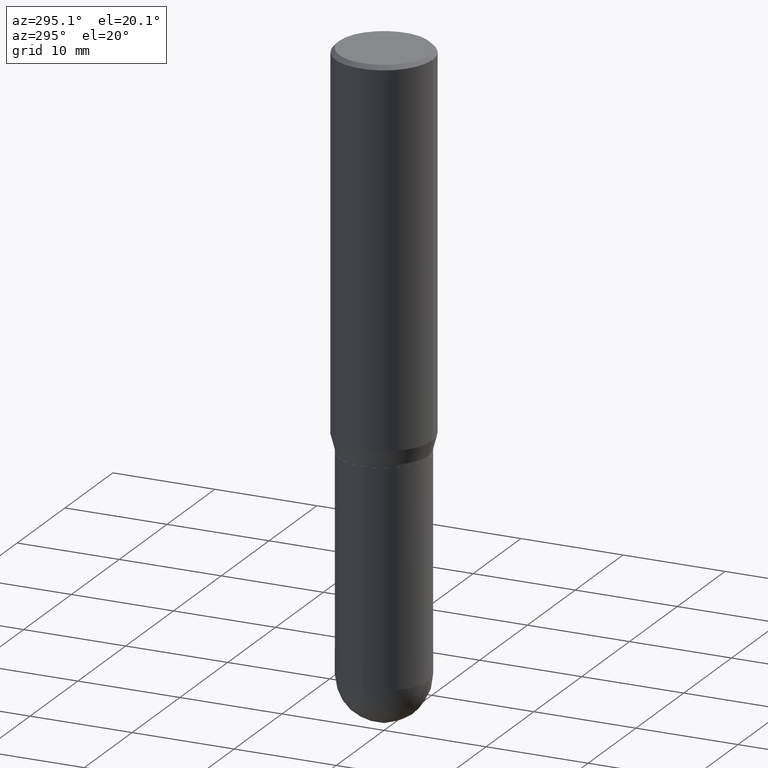
[diagram: clean part render]
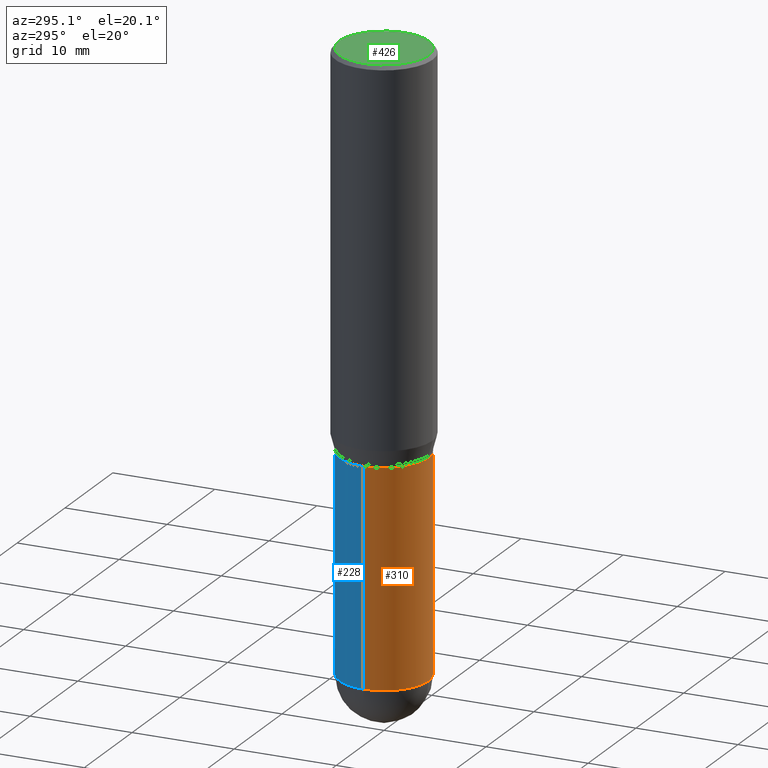
[diagram: same view with three faces highlighted in distinct colors, each labeled with its STEP entity id]
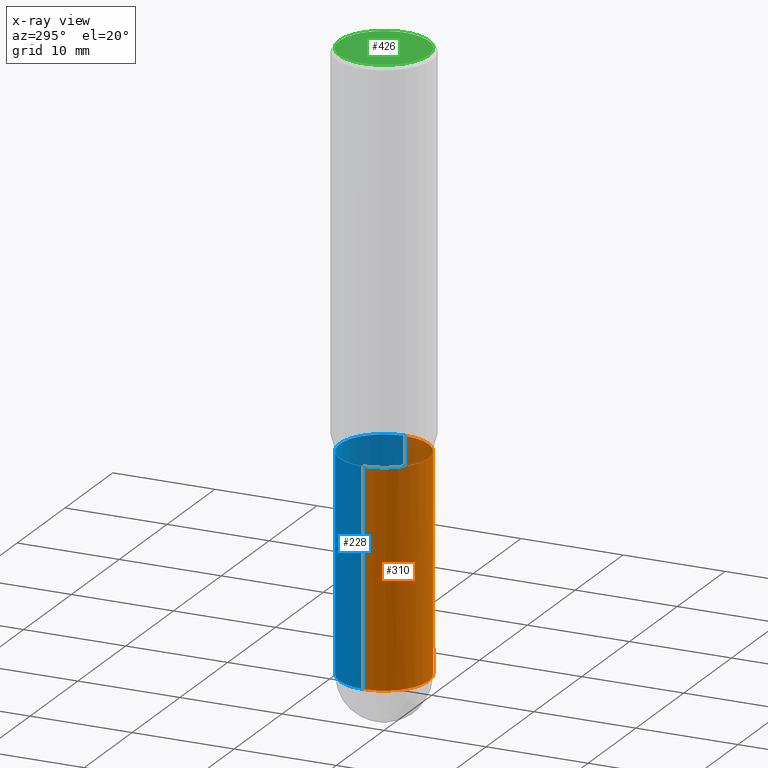
[diagram: x-ray of the same camera — body ghosted, the three highlighted faces saturated]
A machine part, auxiliary view with three faces highlighted in distinct colors.
The next image is the same camera in x-ray (body ghosted, the three faces saturated) — at least one of them is partly hidden behind the body in this view.
Their STEP definitions:

[orange] entity #310 — the highlighted cylindrical surface (partial cylindrical patch) has radius 4.3663 mm, axis along (-0, 0, 1).
#11 = VERTEX_POINT ( 'NONE', #105 ) ;
#17 = LINE ( 'NONE', #107, #503 ) ;
#74 = CIRCLE ( 'NONE', #203, 0.1719000000000000250 ) ;
#80 = EDGE_CURVE ( 'NONE', #11, #320, #17, .T. ) ;
#87 = AXIS2_PLACEMENT_3D ( 'NONE', #119, #254, #508 ) ;
#91 = CYLINDRICAL_SURFACE ( 'NONE', #87, 0.1719000000000000250 ) ;
#100 = DIRECTION ( 'NONE',  ( 1.000000000000000000, -6.982962677686268288E-15, 0.000000000000000000 ) ) ;
#102 = CARTESIAN_POINT ( 'NONE',  ( -0.1718999999999999695, -5.461446893841111458E-15, -1.500000000000000222 ) ) ;
#105 = CARTESIAN_POINT ( 'NONE',  ( 0.1719000000000000250, -7.883241140906993293E-15, -2.328100000000000058 ) ) ;
#107 = CARTESIAN_POINT ( 'NONE',  ( 0.1719000000000000250, -1.200371284294269241E-15, 8.382147877593214480E-30 ) ) ;
#119 = CARTESIAN_POINT ( 'NONE',  ( 0.000000000000000000, 0.000000000000000000, 0.000000000000000000 ) ) ;
#121 = CARTESIAN_POINT ( 'NONE',  ( 0.1718999999999999695, -6.437593292558987418E-15, -1.500000000000000222 ) ) ;
#166 = EDGE_CURVE ( 'NONE', #336, #11, #234, .T. ) ;
#183 = DIRECTION ( 'NONE',  ( -2.445468806185136877E-29, 3.491481338843145188E-15, 1.000000000000000000 ) ) ;
#185 = CARTESIAN_POINT ( 'NONE',  ( 5.693295927679617284E-29, -8.128517704960729139E-15, -2.328100000000000058 ) ) ;
#193 = DIRECTION ( 'NONE',  ( -2.445468806185136597E-29, 3.491481338843145583E-15, 1.000000000000000000 ) ) ;
#203 = AXIS2_PLACEMENT_3D ( 'NONE', #307, #447, #376 ) ;
#205 = EDGE_CURVE ( 'NONE', #483, #210, #486, .T. ) ;
#210 = VERTEX_POINT ( 'NONE', #102 ) ;
#215 = ORIENTED_EDGE ( 'NONE', *, *, #80, .T. ) ;
#234 = CIRCLE ( 'NONE', #299, 0.1719000000000000250 ) ;
#254 = DIRECTION ( 'NONE',  ( -2.445468806185136597E-29, 3.491481338843145583E-15, 1.000000000000000000 ) ) ;
#255 = DIRECTION ( 'NONE',  ( -2.445468806185136877E-29, 3.491481338843145188E-15, 1.000000000000000000 ) ) ;
#275 = CARTESIAN_POINT ( 'NONE',  ( -1.221422962771555008E-15, -0.1719000000000081296, -2.328099999999999614 ) ) ;
#299 = AXIS2_PLACEMENT_3D ( 'NONE', #185, #449, #482 ) ;
#307 = CARTESIAN_POINT ( 'NONE',  ( 5.693295927679617284E-29, -8.128517704960729139E-15, -2.328100000000000058 ) ) ;
#310 = ADVANCED_FACE ( 'NONE', ( #393 ), #91, .T. ) ;
#320 = VERTEX_POINT ( 'NONE', #121 ) ;
#330 = ORIENTED_EDGE ( 'NONE', *, *, #166, .T. ) ;
#334 = CARTESIAN_POINT ( 'NONE',  ( -0.1719000000000000250, -5.461446893841112247E-15, -2.328100000000000058 ) ) ;
#336 = VERTEX_POINT ( 'NONE', #275 ) ;
#345 = EDGE_CURVE ( 'NONE', #210, #320, #420, .T. ) ;
#365 = ORIENTED_EDGE ( 'NONE', *, *, #205, .F. ) ;
#376 = DIRECTION ( 'NONE',  ( 1.000000000000000000, -6.982962677686271444E-15, 0.000000000000000000 ) ) ;
#386 = EDGE_LOOP ( 'NONE', ( #365, #476, #330, #215, #397 ) ) ;
#393 = FACE_OUTER_BOUND ( 'NONE', #386, .T. ) ;
#397 = ORIENTED_EDGE ( 'NONE', *, *, #345, .F. ) ;
#419 = VECTOR ( 'NONE', #255, 39.37007874015748143 ) ;
#420 = CIRCLE ( 'NONE', #454, 0.1718999999999999695 ) ;
#424 = EDGE_CURVE ( 'NONE', #483, #336, #74, .T. ) ;
#447 = DIRECTION ( 'NONE',  ( -2.445468806185136597E-29, 3.491481338843145583E-15, 1.000000000000000000 ) ) ;
#449 = DIRECTION ( 'NONE',  ( -2.445468806185136597E-29, 3.491481338843145583E-15, 1.000000000000000000 ) ) ;
#453 = CARTESIAN_POINT ( 'NONE',  ( 3.668203209277704895E-29, -5.237222008264718177E-15, -1.500000000000000222 ) ) ;
#454 = AXIS2_PLACEMENT_3D ( 'NONE', #453, #193, #100 ) ;
#455 = CARTESIAN_POINT ( 'NONE',  ( -0.1719000000000000250, 1.221422962771612397E-15, -8.455649420148184581E-30 ) ) ;
#476 = ORIENTED_EDGE ( 'NONE', *, *, #424, .T. ) ;
#482 = DIRECTION ( 'NONE',  ( 1.000000000000000000, -6.982962677686271444E-15, 0.000000000000000000 ) ) ;
#483 = VERTEX_POINT ( 'NONE', #334 ) ;
#486 = LINE ( 'NONE', #455, #419 ) ;
#503 = VECTOR ( 'NONE', #183, 39.37007874015748143 ) ;
#508 = DIRECTION ( 'NONE',  ( 1.000000000000000000, -6.982962677686265922E-15, 4.876176775795935793E-29 ) ) ;

[blue] entity #228 — the highlighted cylindrical surface (partial cylindrical patch) has radius 4.3663 mm, axis along (-0, 0, 1).
#11 = VERTEX_POINT ( 'NONE', #105 ) ;
#13 = VERTEX_POINT ( 'NONE', #62 ) ;
#16 = CARTESIAN_POINT ( 'NONE',  ( 5.693295927679617284E-29, -8.128517704960729139E-15, -2.328100000000000058 ) ) ;
#17 = LINE ( 'NONE', #107, #503 ) ;
#23 = DIRECTION ( 'NONE',  ( -2.445468806185136597E-29, 3.491481338843145583E-15, 1.000000000000000000 ) ) ;
#53 = DIRECTION ( 'NONE',  ( 1.000000000000000000, -6.982962677686268288E-15, 0.000000000000000000 ) ) ;
#54 = ORIENTED_EDGE ( 'NONE', *, *, #98, .F. ) ;
#58 = CYLINDRICAL_SURFACE ( 'NONE', #123, 0.1719000000000000250 ) ;
#62 = CARTESIAN_POINT ( 'NONE',  ( 1.200371284294326039E-15, 0.1718999999999918094, -2.328100000000000946 ) ) ;
#80 = EDGE_CURVE ( 'NONE', #11, #320, #17, .T. ) ;
#89 = CARTESIAN_POINT ( 'NONE',  ( 0.000000000000000000, 0.000000000000000000, 0.000000000000000000 ) ) ;
#92 = DIRECTION ( 'NONE',  ( 1.000000000000000000, -6.982962677686271444E-15, 0.000000000000000000 ) ) ;
#98 = EDGE_CURVE ( 'NONE', #320, #210, #369, .T. ) ;
#102 = CARTESIAN_POINT ( 'NONE',  ( -0.1718999999999999695, -5.461446893841111458E-15, -1.500000000000000222 ) ) ;
#105 = CARTESIAN_POINT ( 'NONE',  ( 0.1719000000000000250, -7.883241140906993293E-15, -2.328100000000000058 ) ) ;
#107 = CARTESIAN_POINT ( 'NONE',  ( 0.1719000000000000250, -1.200371284294269241E-15, 8.382147877593214480E-30 ) ) ;
#121 = CARTESIAN_POINT ( 'NONE',  ( 0.1718999999999999695, -6.437593292558987418E-15, -1.500000000000000222 ) ) ;
#123 = AXIS2_PLACEMENT_3D ( 'NONE', #89, #252, #398 ) ;
#177 = EDGE_CURVE ( 'NONE', #11, #13, #430, .T. ) ;
#183 = DIRECTION ( 'NONE',  ( -2.445468806185136877E-29, 3.491481338843145188E-15, 1.000000000000000000 ) ) ;
#186 = EDGE_LOOP ( 'NONE', ( #470, #402, #54, #286, #379 ) ) ;
#205 = EDGE_CURVE ( 'NONE', #483, #210, #486, .T. ) ;
#210 = VERTEX_POINT ( 'NONE', #102 ) ;
#220 = EDGE_CURVE ( 'NONE', #13, #483, #314, .T. ) ;
#228 = ADVANCED_FACE ( 'NONE', ( #401 ), #58, .T. ) ;
#252 = DIRECTION ( 'NONE',  ( -2.445468806185136597E-29, 3.491481338843145583E-15, 1.000000000000000000 ) ) ;
#255 = DIRECTION ( 'NONE',  ( -2.445468806185136877E-29, 3.491481338843145188E-15, 1.000000000000000000 ) ) ;
#259 = DIRECTION ( 'NONE',  ( -2.445468806185136597E-29, 3.491481338843145583E-15, 1.000000000000000000 ) ) ;
#285 = DIRECTION ( 'NONE',  ( 1.000000000000000000, -6.982962677686271444E-15, 0.000000000000000000 ) ) ;
#286 = ORIENTED_EDGE ( 'NONE', *, *, #80, .F. ) ;
#291 = DIRECTION ( 'NONE',  ( -2.445468806185136597E-29, 3.491481338843145583E-15, 1.000000000000000000 ) ) ;
#314 = CIRCLE ( 'NONE', #321, 0.1719000000000000250 ) ;
#320 = VERTEX_POINT ( 'NONE', #121 ) ;
#321 = AXIS2_PLACEMENT_3D ( 'NONE', #408, #23, #285 ) ;
#324 = CARTESIAN_POINT ( 'NONE',  ( 3.668203209277704895E-29, -5.237222008264718177E-15, -1.500000000000000222 ) ) ;
#334 = CARTESIAN_POINT ( 'NONE',  ( -0.1719000000000000250, -5.461446893841112247E-15, -2.328100000000000058 ) ) ;
#338 = AXIS2_PLACEMENT_3D ( 'NONE', #324, #291, #53 ) ;
#369 = CIRCLE ( 'NONE', #338, 0.1718999999999999695 ) ;
#379 = ORIENTED_EDGE ( 'NONE', *, *, #177, .T. ) ;
#398 = DIRECTION ( 'NONE',  ( 1.000000000000000000, -6.982962677686265922E-15, 4.876176775795935793E-29 ) ) ;
#401 = FACE_OUTER_BOUND ( 'NONE', #186, .T. ) ;
#402 = ORIENTED_EDGE ( 'NONE', *, *, #205, .T. ) ;
#408 = CARTESIAN_POINT ( 'NONE',  ( 5.693295927679617284E-29, -8.128517704960729139E-15, -2.328100000000000058 ) ) ;
#419 = VECTOR ( 'NONE', #255, 39.37007874015748143 ) ;
#430 = CIRCLE ( 'NONE', #484, 0.1719000000000000250 ) ;
#455 = CARTESIAN_POINT ( 'NONE',  ( -0.1719000000000000250, 1.221422962771612397E-15, -8.455649420148184581E-30 ) ) ;
#470 = ORIENTED_EDGE ( 'NONE', *, *, #220, .T. ) ;
#483 = VERTEX_POINT ( 'NONE', #334 ) ;
#484 = AXIS2_PLACEMENT_3D ( 'NONE', #16, #259, #92 ) ;
#486 = LINE ( 'NONE', #455, #419 ) ;
#503 = VECTOR ( 'NONE', #183, 39.37007874015748143 ) ;

[green] entity #426 — the highlighted planar face has unit normal (0, -0, -1).
#10 = CARTESIAN_POINT ( 'NONE',  ( 1.325500720156383299E-45, -1.892455723492389081E-31, -5.420220105122506872E-17 ) ) ;
#22 = FACE_OUTER_BOUND ( 'NONE', #120, .T. ) ;
#26 = AXIS2_PLACEMENT_3D ( 'NONE', #10, #374, #443 ) ;
#68 = AXIS2_PLACEMENT_3D ( 'NONE', #490, #178, #332 ) ;
#81 = VERTEX_POINT ( 'NONE', #491 ) ;
#111 = EDGE_CURVE ( 'NONE', #81, #176, #281, .T. ) ;
#120 = EDGE_LOOP ( 'NONE', ( #356, #409 ) ) ;
#155 = EDGE_CURVE ( 'NONE', #176, #81, #224, .T. ) ;
#176 = VERTEX_POINT ( 'NONE', #231 ) ;
#178 = DIRECTION ( 'NONE',  ( -2.445473974209437701E-29, 3.491473937938200789E-15, 1.000000000000000000 ) ) ;
#187 = PLANE ( 'NONE',  #274 ) ;
#224 = CIRCLE ( 'NONE', #26, 0.1725000000000000144 ) ;
#227 = DIRECTION ( 'NONE',  ( 2.445473974209437701E-29, -3.491473937938200394E-15, -1.000000000000000000 ) ) ;
#231 = CARTESIAN_POINT ( 'NONE',  ( -1.234889639598875176E-15, -0.1725000000000000144, 5.480770532431145279E-16 ) ) ;
#274 = AXIS2_PLACEMENT_3D ( 'NONE', #337, #227, #294 ) ;
#281 = CIRCLE ( 'NONE', #68, 0.1725000000000000144 ) ;
#294 = DIRECTION ( 'NONE',  ( 6.982962677686265922E-15, 1.000000000000000000, -3.491473937938200394E-15 ) ) ;
#332 = DIRECTION ( 'NONE',  ( -6.982962677686266711E-15, -1.000000000000000000, 3.491473937938200394E-15 ) ) ;
#337 = CARTESIAN_POINT ( 'NONE',  ( 1.204561061900881047E-15, 0.1725000000000000144, -6.293803548199521803E-16 ) ) ;
#356 = ORIENTED_EDGE ( 'NONE', *, *, #111, .T. ) ;
#374 = DIRECTION ( 'NONE',  ( -2.445473974209437701E-29, 3.491473937938200789E-15, 1.000000000000000000 ) ) ;
#409 = ORIENTED_EDGE ( 'NONE', *, *, #155, .T. ) ;
#426 = ADVANCED_FACE ( 'NONE', ( #22 ), #187, .F. ) ;
#443 = DIRECTION ( 'NONE',  ( -6.982962677686266711E-15, -1.000000000000000000, 3.491473937938200394E-15 ) ) ;
#490 = CARTESIAN_POINT ( 'NONE',  ( 1.325500720156383299E-45, -1.892455723492389081E-31, -5.420220105122506872E-17 ) ) ;
#491 = CARTESIAN_POINT ( 'NONE',  ( 1.256933281983528323E-15, 0.1725000000000000144, -6.564814553455647639E-16 ) ) ;